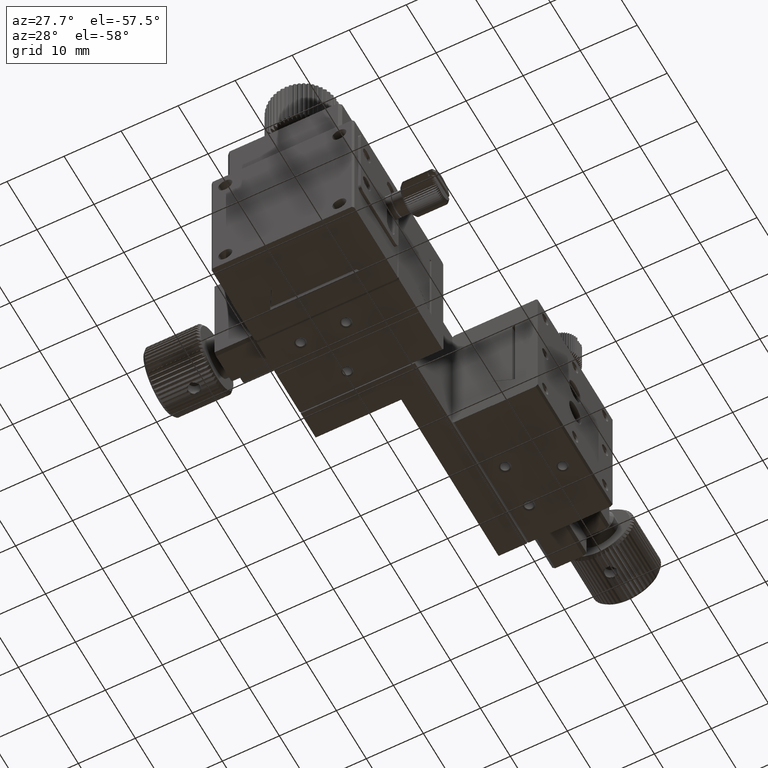
[diagram: clean part render]
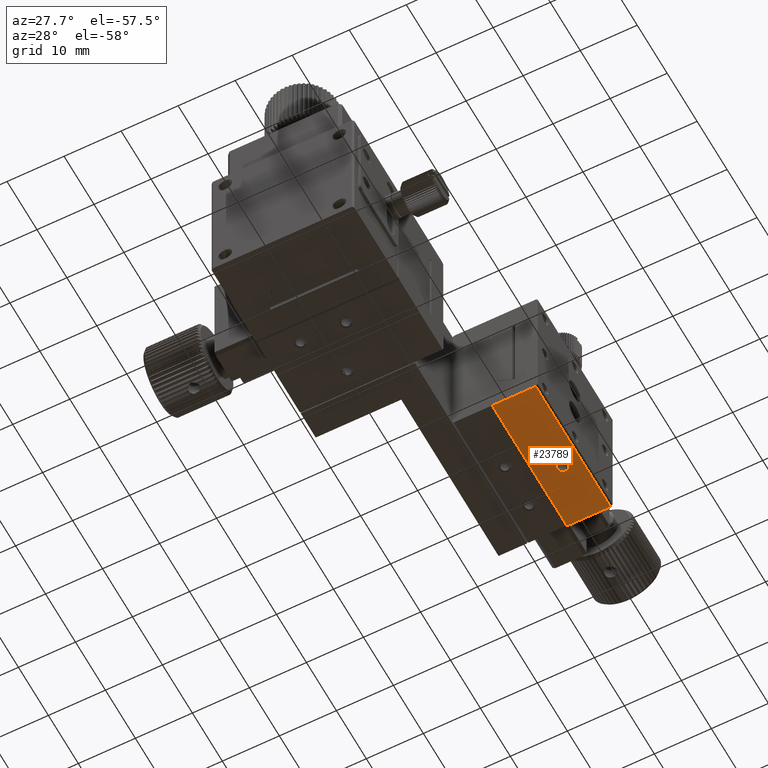
[diagram: same view with one face highlighted and labeled with its STEP entity id]
A machine part, auxiliary view. The second image highlights one B-rep face of the part: STEP entity #23789.
In plain terms, the highlighted planar face has unit normal (0, 0, 1).
Its self-contained STEP definition (entity closure, byte-faithful):
#745 = ORIENTED_EDGE ( 'NONE', *, *, #15344, .F. ) ;
#3572 = ORIENTED_EDGE ( 'NONE', *, *, #28297, .F. ) ;
#4335 = CARTESIAN_POINT ( 'NONE',  ( 11.50000000000000000, 27.49999999999999645, -25.06499999998368011 ) ) ;
#4345 = LINE ( 'NONE', #16909, #18028 ) ;
#5510 = AXIS2_PLACEMENT_3D ( 'NONE', #4335, #20985, #37699 ) ;
#7162 = CARTESIAN_POINT ( 'NONE',  ( 12.46500000001697117, 27.49999999999999645, -25.06499999998367656 ) ) ;
#7534 = CARTESIAN_POINT ( 'NONE',  ( 6.999999999999999112, 12.49999999999999645, -25.06499999999999773 ) ) ;
#8186 = DIRECTION ( 'NONE',  ( 0.000000000000000000, -1.000000000000000000, 0.000000000000000000 ) ) ;
#8415 = LINE ( 'NONE', #49679, #12860 ) ;
#8879 = CARTESIAN_POINT ( 'NONE',  ( 6.999999999999999112, 12.49999999999999645, -25.06499999999999773 ) ) ;
#12860 = VECTOR ( 'NONE', #25058, 1000.000000000000000 ) ;
#13234 = EDGE_CURVE ( 'NONE', #32256, #36859, #34221, .T. ) ;
#14277 = CARTESIAN_POINT ( 'NONE',  ( 14.63400000000001100, 37.50000000000000000, -25.06499999999999773 ) ) ;
#15344 = EDGE_CURVE ( 'NONE', #42042, #32256, #20059, .T. ) ;
#16262 = DIRECTION ( 'NONE',  ( 0.000000000000000000, -1.000000000000000000, 0.000000000000000000 ) ) ;
#16909 = CARTESIAN_POINT ( 'NONE',  ( 14.63400000000001100, 12.49999999999999645, -25.06499999999999773 ) ) ;
#16932 = EDGE_LOOP ( 'NONE', ( #39353, #34835, #745, #43186 ) ) ;
#17051 = CARTESIAN_POINT ( 'NONE',  ( 6.999999999999999112, 12.49999999999999645, -25.06499999999999773 ) ) ;
#17985 = CARTESIAN_POINT ( 'NONE',  ( 14.63400000000001100, 12.49999999999999645, -25.06499999999999773 ) ) ;
#18028 = VECTOR ( 'NONE', #8186, 1000.000000000000000 ) ;
#20059 = LINE ( 'NONE', #7534, #40538 ) ;
#20617 = PLANE ( 'NONE',  #22458 ) ;
#20985 = DIRECTION ( 'NONE',  ( 1.797640907928152278E-15, 0.000000000000000000, -1.000000000000000000 ) ) ;
#22078 = CIRCLE ( 'NONE', #5510, 0.9650000000169713932 ) ;
#22458 = AXIS2_PLACEMENT_3D ( 'NONE', #8879, #53771, #16262 ) ;
#23458 = EDGE_CURVE ( 'NONE', #42042, #34863, #8415, .T. ) ;
#23789 = ADVANCED_FACE ( 'NONE', ( #29375, #53471 ), #20617, .F. ) ;
#25058 = DIRECTION ( 'NONE',  ( 1.000000000000000000, 0.000000000000000000, 0.000000000000000000 ) ) ;
#26888 = CARTESIAN_POINT ( 'NONE',  ( 6.999999999999999112, 37.50000000000000000, -25.06499999999999773 ) ) ;
#28297 = EDGE_CURVE ( 'NONE', #48156, #48156, #22078, .T. ) ;
#29375 = FACE_OUTER_BOUND ( 'NONE', #16932, .T. ) ;
#32256 = VERTEX_POINT ( 'NONE', #17051 ) ;
#34221 = LINE ( 'NONE', #50383, #38817 ) ;
#34835 = ORIENTED_EDGE ( 'NONE', *, *, #13234, .F. ) ;
#34863 = VERTEX_POINT ( 'NONE', #14277 ) ;
#36859 = VERTEX_POINT ( 'NONE', #17985 ) ;
#37340 = DIRECTION ( 'NONE',  ( 0.000000000000000000, -1.000000000000000000, 0.000000000000000000 ) ) ;
#37699 = DIRECTION ( 'NONE',  ( 1.000000000000000000, 0.000000000000000000, 3.595281815432743047E-15 ) ) ;
#38817 = VECTOR ( 'NONE', #50917, 1000.000000000000000 ) ;
#39353 = ORIENTED_EDGE ( 'NONE', *, *, #44161, .T. ) ;
#40538 = VECTOR ( 'NONE', #37340, 1000.000000000000000 ) ;
#42042 = VERTEX_POINT ( 'NONE', #26888 ) ;
#43186 = ORIENTED_EDGE ( 'NONE', *, *, #23458, .T. ) ;
#44161 = EDGE_CURVE ( 'NONE', #34863, #36859, #4345, .T. ) ;
#48156 = VERTEX_POINT ( 'NONE', #7162 ) ;
#49679 = CARTESIAN_POINT ( 'NONE',  ( 15.00000000000000000, 37.50000000000000000, -25.06499999999999773 ) ) ;
#50383 = CARTESIAN_POINT ( 'NONE',  ( 15.00000000000000000, 12.49999999999999645, -25.06499999999999773 ) ) ;
#50917 = DIRECTION ( 'NONE',  ( 1.000000000000000000, 0.000000000000000000, 0.000000000000000000 ) ) ;
#52289 = EDGE_LOOP ( 'NONE', ( #3572 ) ) ;
#53471 = FACE_BOUND ( 'NONE', #52289, .T. ) ;
#53771 = DIRECTION ( 'NONE',  ( 0.000000000000000000, 0.000000000000000000, 1.000000000000000000 ) ) ;